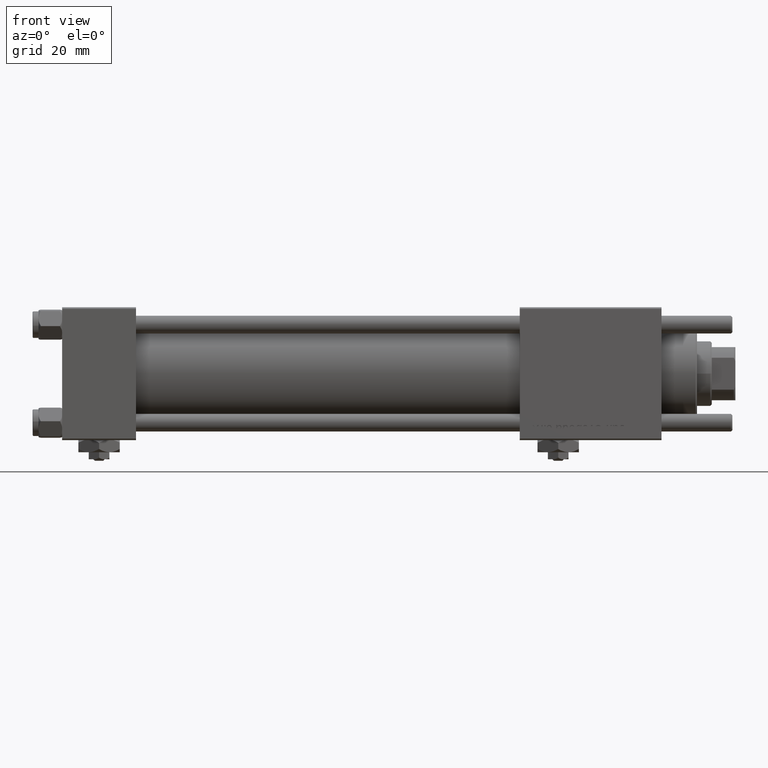
[diagram: clean part render]
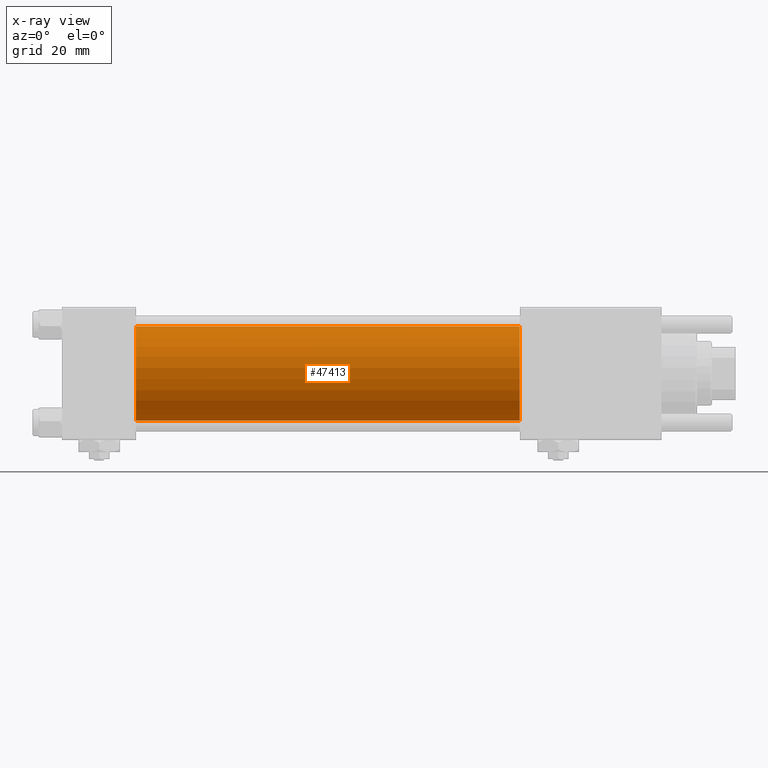
[diagram: x-ray — body ghosted, one internal face saturated and labeled with its STEP entity id]
A machine part, front view, then the same camera in x-ray: the body is ghosted and one INTERNAL B-rep face — a face not visible from any outside direction — is saturated and labeled: STEP entity #47413.
In plain terms, the highlighted cylindrical surface (partial cylindrical patch) has radius 16 mm, axis along (-1, -0, -0).
Its self-contained STEP definition (entity closure, byte-faithful):
#247 = CYLINDRICAL_SURFACE ( 'NONE', #59424, 16.00000000000000000 ) ;
#1034 = VERTEX_POINT ( 'NONE', #55393 ) ;
#3305 = DIRECTION ( 'NONE',  ( 0.000000000000000000, 0.000000000000000000, -1.000000000000000000 ) ) ;
#3742 = CARTESIAN_POINT ( 'NONE',  ( 155.0000000000000000, -2.602085213965210642E-15, 16.00000000000000000 ) ) ;
#4503 = CARTESIAN_POINT ( 'NONE',  ( 155.0000000000000000, -6.426503353294456087E-16, -16.00000000000000000 ) ) ;
#5326 = VECTOR ( 'NONE', #8602, 1000.000000000000000 ) ;
#7688 = LINE ( 'NONE', #3742, #5326 ) ;
#8164 = DIRECTION ( 'NONE',  ( 1.000000000000000000, 0.000000000000000000, 0.000000000000000000 ) ) ;
#8602 = DIRECTION ( 'NONE',  ( -1.000000000000000000, -0.000000000000000000, -0.000000000000000000 ) ) ;
#8689 = ORIENTED_EDGE ( 'NONE', *, *, #33724, .T. ) ;
#8826 = CARTESIAN_POINT ( 'NONE',  ( 155.0000000000000000, -2.602085213965210642E-15, 0.000000000000000000 ) ) ;
#13286 = LINE ( 'NONE', #4503, #54118 ) ;
#15081 = FACE_OUTER_BOUND ( 'NONE', #55267, .T. ) ;
#17724 = ORIENTED_EDGE ( 'NONE', *, *, #40948, .F. ) ;
#18411 = VERTEX_POINT ( 'NONE', #34600 ) ;
#24050 = CIRCLE ( 'NONE', #34700, 16.00000000000000000 ) ;
#26135 = CARTESIAN_POINT ( 'NONE',  ( 155.0000000000000000, -2.602085213965210642E-15, 16.00000000000000000 ) ) ;
#26207 = AXIS2_PLACEMENT_3D ( 'NONE', #35743, #8164, #3305 ) ;
#28505 = DIRECTION ( 'NONE',  ( 0.000000000000000000, 0.000000000000000000, -1.000000000000000000 ) ) ;
#30104 = CIRCLE ( 'NONE', #26207, 16.00000000000000000 ) ;
#30549 = ORIENTED_EDGE ( 'NONE', *, *, #55904, .F. ) ;
#33724 = EDGE_CURVE ( 'NONE', #44477, #43235, #24050, .T. ) ;
#34112 = EDGE_CURVE ( 'NONE', #43235, #1034, #13286, .T. ) ;
#34600 = CARTESIAN_POINT ( 'NONE',  ( 25.00000000000000000, -2.602085213965210642E-15, 16.00000000000000000 ) ) ;
#34700 = AXIS2_PLACEMENT_3D ( 'NONE', #8826, #46414, #28505 ) ;
#35743 = CARTESIAN_POINT ( 'NONE',  ( 25.00000000000000000, -2.602085213965210642E-15, 0.000000000000000000 ) ) ;
#40948 = EDGE_CURVE ( 'NONE', #18411, #1034, #30104, .T. ) ;
#41197 = DIRECTION ( 'NONE',  ( -1.000000000000000000, -0.000000000000000000, -0.000000000000000000 ) ) ;
#41474 = CARTESIAN_POINT ( 'NONE',  ( 155.0000000000000000, -6.426503353294456087E-16, -16.00000000000000000 ) ) ;
#41799 = CARTESIAN_POINT ( 'NONE',  ( 155.0000000000000000, -2.602085213965210642E-15, 0.000000000000000000 ) ) ;
#42388 = DIRECTION ( 'NONE',  ( -1.000000000000000000, -0.000000000000000000, -0.000000000000000000 ) ) ;
#43235 = VERTEX_POINT ( 'NONE', #41474 ) ;
#44477 = VERTEX_POINT ( 'NONE', #26135 ) ;
#46414 = DIRECTION ( 'NONE',  ( 1.000000000000000000, 0.000000000000000000, 0.000000000000000000 ) ) ;
#47413 = ADVANCED_FACE ( 'NONE', ( #15081 ), #247, .F. ) ;
#48159 = ORIENTED_EDGE ( 'NONE', *, *, #34112, .T. ) ;
#54118 = VECTOR ( 'NONE', #41197, 1000.000000000000000 ) ;
#55267 = EDGE_LOOP ( 'NONE', ( #8689, #48159, #17724, #30549 ) ) ;
#55393 = CARTESIAN_POINT ( 'NONE',  ( 25.00000000000000000, -6.426503353294456087E-16, -16.00000000000000000 ) ) ;
#55904 = EDGE_CURVE ( 'NONE', #44477, #18411, #7688, .T. ) ;
#56659 = DIRECTION ( 'NONE',  ( 0.000000000000000000, 0.000000000000000000, 1.000000000000000000 ) ) ;
#59424 = AXIS2_PLACEMENT_3D ( 'NONE', #41799, #42388, #56659 ) ;